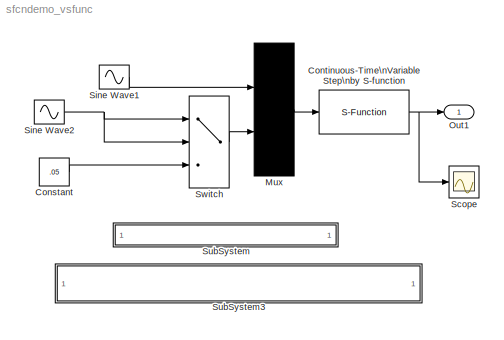
MODEL sfcndemo_vsfunc
KIND model
BLOCK [Constant] Constant
  Value = .05
BLOCK [S-Function] Continuous-Time\nVariable Step\nby S-function
  FunctionName = vsfunc
  MaskDisplay = disp('dt           = u(2)\\ny(t + dt) = u(t)')
  MaskIconFrame = on
  MaskIconOpaque = on
  MaskIconRotate = none
  MaskIconUnits = autoscale
  Ports = [1, 1]
BLOCK [Mux] Mux
  Inputs = 2
  Ports = [2, 1]
BLOCK [Outport] Out1
  IconDisplay = Port number
  InitialOutput = 0
BLOCK [Scope] Scope
  DataFormat = StructureWithTime
  NumInputPorts = 1
  Ports = [1]
  SaveName = scopeout1
  SaveToWorkspace = on
  TimeRange = 10
  YMax = 0
  YMin = -1.6e-15
BLOCK [Sin] Sine Wave1
  Frequency = 2*pi
  Ports = [0, 1]
  SampleTime = 0
BLOCK [Sin] Sine Wave2
  Amplitude = 2
  Frequency = 2*pi
  Ports = [0, 1]
  SampleTime = 0
BLOCK [SubSystem] SubSystem
  MaskDisplay = disp('matlabroot<path>');
  MaskIconFrame = on
  MaskIconOpaque = on
  MaskIconRotate = none
  MaskIconUnits = autoscale
  MinAlgLoopOccurrences = off
  OpenFcn = edit(fullfile(matlabroot,'simulink','src','vsfunc.c'))
  Ports = []
  PropExecContextAcrossSSBoundary = on
  RTWSystemCode = Auto
  TreatAsAtomicUnit = off
BLOCK [SubSystem] SubSystem3
  MaskDisplay = disp('M-file: matlabroot<path>\\nNote:to run the m-file, please disable the executable mex file in your path.');
  MaskIconFrame = on
  MaskIconOpaque = on
  MaskIconRotate = none
  MaskIconUnits = autoscale
  MinAlgLoopOccurrences = off
  OpenFcn = edit(fullfile(matlabroot,'toolbox','simulink','blocks','vsfunc.m'))
  Ports = []
  PropExecContextAcrossSSBoundary = on
  RTWSystemCode = Auto
  TreatAsAtomicUnit = off
BLOCK [Switch] Switch
  Threshold = 0.1
LINE Constant:1 -> Switch:3
NET Continuous-Time\nVariable Step\nby S-function:1 -> Out1:1, Scope:1
LINE Mux:1 -> Continuous-Time\nVariable Step\nby S-function:1
LINE Sine Wave1:1 -> Mux:1
NET Sine Wave2:1 -> Switch:1, Switch:2
LINE Switch:1 -> Mux:2
note: NET lines group one-source signal fan-out (src -> all destinations, sorted); 1:1 wires keep LINE
note: 2 file-system paths scrubbed to <path> (not preserved elsewhere — flat text is the only slx artifact)
